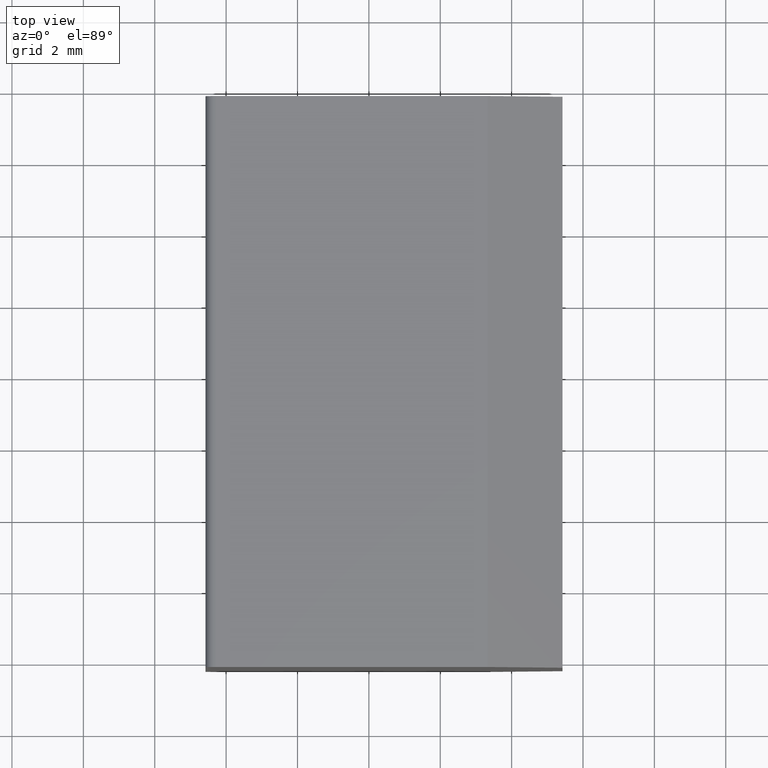
[diagram: clean part render]
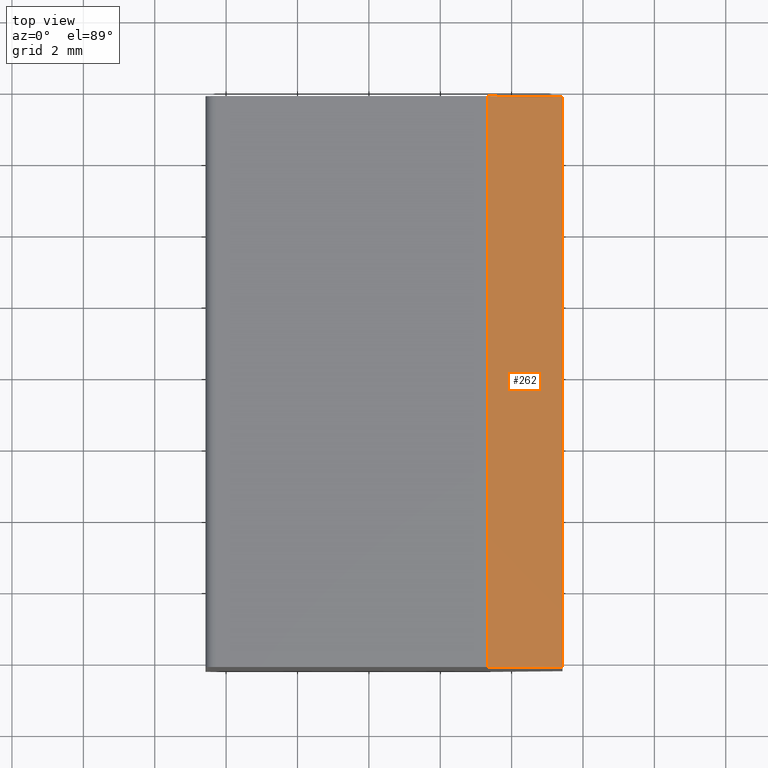
[diagram: same view with one face highlighted and labeled with its STEP entity id]
A machine part, top view. The second image highlights one B-rep face of the part: STEP entity #262.
In plain terms, the highlighted planar face has unit normal (0.5, -0, 0.866).
Its self-contained STEP definition (entity closure, byte-faithful):
#37=FACE_OUTER_BOUND('',#53,.T.);
#53=EDGE_LOOP('',(#192,#193,#194,#195));
#71=LINE('',#415,#96);
#73=LINE('',#419,#98);
#78=LINE('',#435,#103);
#79=LINE('',#436,#104);
#96=VECTOR('',#332,10.);
#98=VECTOR('',#336,9.85221674);
#103=VECTOR('',#349,9.85221674);
#104=VECTOR('',#350,9.85221674);
#121=VERTEX_POINT('',#412);
#122=VERTEX_POINT('',#414);
#123=VERTEX_POINT('',#418);
#130=VERTEX_POINT('',#434);
#145=EDGE_CURVE('',#122,#121,#71,.T.);
#147=EDGE_CURVE('',#122,#123,#73,.T.);
#155=EDGE_CURVE('',#130,#121,#78,.T.);
#156=EDGE_CURVE('',#123,#130,#79,.T.);
#192=ORIENTED_EDGE('',*,*,#145,.T.);
#193=ORIENTED_EDGE('',*,*,#155,.F.);
#194=ORIENTED_EDGE('',*,*,#156,.F.);
#195=ORIENTED_EDGE('',*,*,#147,.F.);
#253=PLANE('',#304);
#262=ADVANCED_FACE('',(#37),#253,.T.);
#304=AXIS2_PLACEMENT_3D('',#433,#347,#348);
#332=DIRECTION('',(1.78098277025459E-15,1.,-3.56554371523276E-16));
#336=DIRECTION('',(-0.866025403784438,1.71531194365648E-15,0.500000000000001));
#347=DIRECTION('center_axis',(0.500000000000001,-5.81706241557748E-16,0.866025403784438));
#348=DIRECTION('ref_axis',(0.866025403784438,-1.71531194365648E-15,-0.500000000000001));
#349=DIRECTION('',(0.866025403784438,-1.71531194365648E-15,-0.500000000000001));
#350=DIRECTION('',(1.77635683940025E-15,1.,-3.53883589099268E-16));
#412=CARTESIAN_POINT('',(-4.57583974066249,41.8049562482497,-28.5511171644726));
#414=CARTESIAN_POINT('',(-4.57583974066251,25.8049562624897,-28.5511171644726));
#415=CARTESIAN_POINT('',(-4.5758397406625,33.8049562553697,-28.5511171644726));
#418=CARTESIAN_POINT('',(-6.67391594970354,25.8049562624898,-27.3397923004024));
#419=CARTESIAN_POINT('',(-7.35654915817229,25.8049562624897,-26.9456738337352));
#433=CARTESIAN_POINT('Origin',(-6.67391594970354,25.8049562624898,-27.3397923004024));
#434=CARTESIAN_POINT('',(-6.67391594970351,41.8049562482498,-27.3397923004024));
#435=CARTESIAN_POINT('',(-7.35654915817226,41.8049562482497,-26.9456738337352));
#436=CARTESIAN_POINT('',(-6.67391594970354,25.8049562624898,-27.3397923004024));